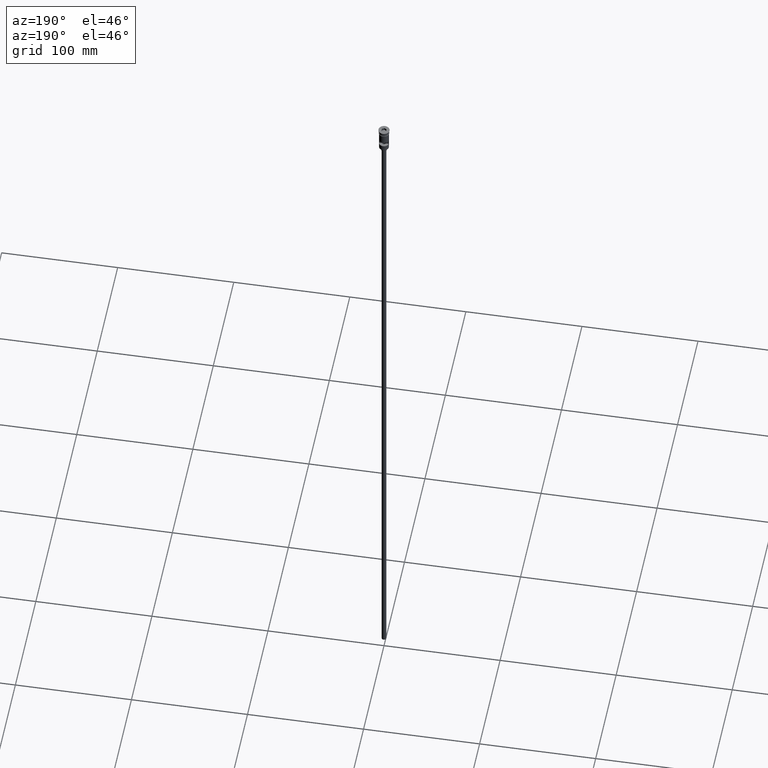
[diagram: clean part render]
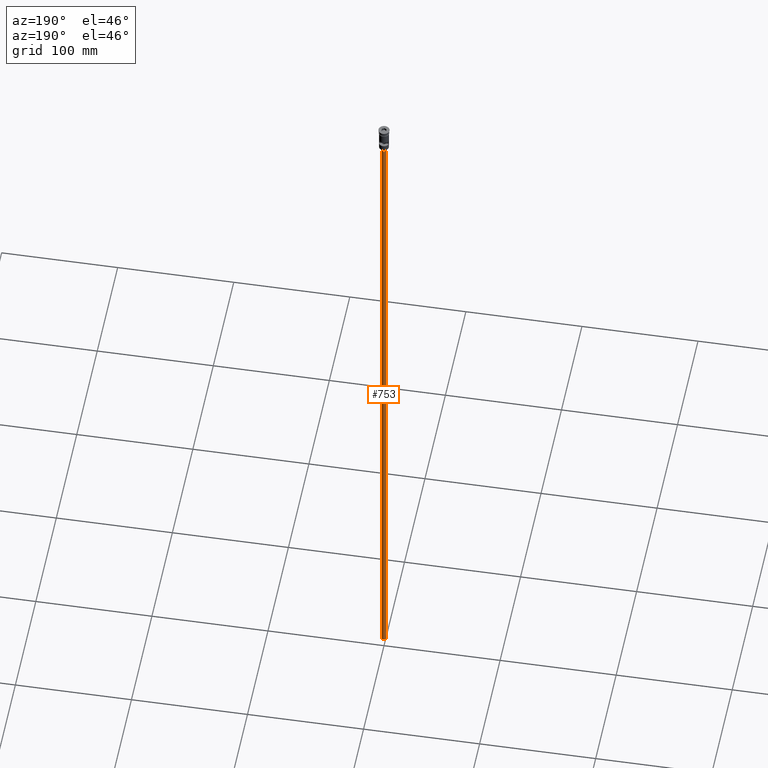
[diagram: same view with one face highlighted and labeled with its STEP entity id]
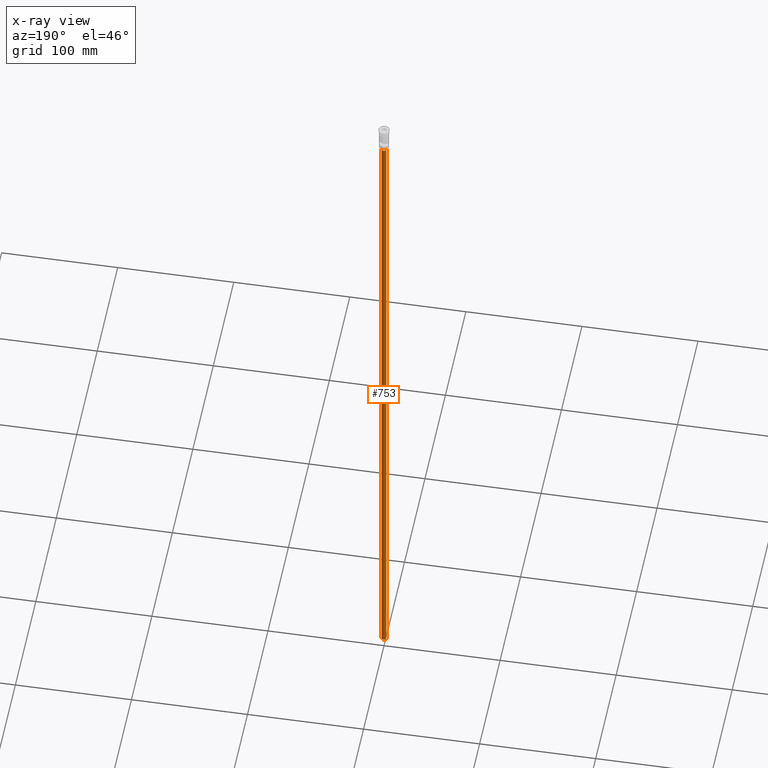
[diagram: x-ray of the same camera — body ghosted, the highlighted face saturated]
A machine part, auxiliary view. The second image highlights one B-rep face of the part: STEP entity #753.
The next image is the same camera in x-ray: the body ghosted, the highlighted face saturated — about 0% of this face is hidden behind the body in this view.
In plain terms, the highlighted cylindrical surface (edge-blend (fillet) strip) has radius 2 mm, axis along (-0, -0, 1).
Its self-contained STEP definition (entity closure, byte-faithful):
#39 = LINE ( 'NONE', #405, #1352 ) ;
#63 = VERTEX_POINT ( 'NONE', #629 ) ;
#127 = DIRECTION ( 'NONE',  ( -1.000000000000000000, 0.000000000000000000, 0.000000000000000000 ) ) ;
#133 = CARTESIAN_POINT ( 'NONE',  ( 2.000000000000000000, 0.000000000000000000, -620.4999999999998863 ) ) ;
#141 = ORIENTED_EDGE ( 'NONE', *, *, #991, .T. ) ;
#148 = AXIS2_PLACEMENT_3D ( 'NONE', #273, #993, #127 ) ;
#241 = AXIS2_PLACEMENT_3D ( 'NONE', #846, #704, #1575 ) ;
#273 = CARTESIAN_POINT ( 'NONE',  ( 0.000000000000000000, 0.000000000000000000, -23.49999999999999645 ) ) ;
#281 = DIRECTION ( 'NONE',  ( 0.000000000000000000, 0.000000000000000000, -1.000000000000000000 ) ) ;
#288 = CIRCLE ( 'NONE', #881, 2.000000000000000000 ) ;
#357 = CARTESIAN_POINT ( 'NONE',  ( -2.000000000000000000, 2.449293598294706414E-16, -23.49999999999999645 ) ) ;
#405 = CARTESIAN_POINT ( 'NONE',  ( -2.000000000000000000, 2.449293598294706414E-16, -620.4999999999998863 ) ) ;
#425 = CARTESIAN_POINT ( 'NONE',  ( 2.000000000000000000, 0.000000000000000000, -620.4999999999998863 ) ) ;
#457 = EDGE_CURVE ( 'NONE', #1218, #63, #1098, .T. ) ;
#488 = VERTEX_POINT ( 'NONE', #133 ) ;
#545 = EDGE_CURVE ( 'NONE', #488, #63, #790, .T. ) ;
#629 = CARTESIAN_POINT ( 'NONE',  ( 2.000000000000000000, 0.000000000000000000, -23.49999999999999645 ) ) ;
#666 = ORIENTED_EDGE ( 'NONE', *, *, #1002, .F. ) ;
#704 = DIRECTION ( 'NONE',  ( -0.000000000000000000, -0.000000000000000000, 1.000000000000000000 ) ) ;
#736 = ORIENTED_EDGE ( 'NONE', *, *, #457, .T. ) ;
#753 = ADVANCED_FACE ( 'NONE', ( #1434 ), #1331, .T. ) ;
#790 = LINE ( 'NONE', #425, #1092 ) ;
#846 = CARTESIAN_POINT ( 'NONE',  ( 0.000000000000000000, 0.000000000000000000, -620.4999999999998863 ) ) ;
#881 = AXIS2_PLACEMENT_3D ( 'NONE', #1533, #281, #885 ) ;
#885 = DIRECTION ( 'NONE',  ( -1.000000000000000000, 0.000000000000000000, 0.000000000000000000 ) ) ;
#991 = EDGE_CURVE ( 'NONE', #1541, #1218, #39, .T. ) ;
#993 = DIRECTION ( 'NONE',  ( 0.000000000000000000, 0.000000000000000000, -1.000000000000000000 ) ) ;
#1002 = EDGE_CURVE ( 'NONE', #1541, #488, #288, .T. ) ;
#1022 = DIRECTION ( 'NONE',  ( -0.000000000000000000, -0.000000000000000000, 1.000000000000000000 ) ) ;
#1037 = ORIENTED_EDGE ( 'NONE', *, *, #545, .F. ) ;
#1092 = VECTOR ( 'NONE', #1022, 1000.000000000000000 ) ;
#1098 = CIRCLE ( 'NONE', #148, 2.000000000000000000 ) ;
#1144 = DIRECTION ( 'NONE',  ( -0.000000000000000000, -0.000000000000000000, 1.000000000000000000 ) ) ;
#1218 = VERTEX_POINT ( 'NONE', #357 ) ;
#1331 = CYLINDRICAL_SURFACE ( 'NONE', #241, 2.000000000000000000 ) ;
#1352 = VECTOR ( 'NONE', #1144, 1000.000000000000000 ) ;
#1429 = EDGE_LOOP ( 'NONE', ( #666, #141, #736, #1037 ) ) ;
#1434 = FACE_OUTER_BOUND ( 'NONE', #1429, .T. ) ;
#1533 = CARTESIAN_POINT ( 'NONE',  ( 0.000000000000000000, 0.000000000000000000, -620.4999999999998863 ) ) ;
#1541 = VERTEX_POINT ( 'NONE', #1580 ) ;
#1575 = DIRECTION ( 'NONE',  ( 1.000000000000000000, 0.000000000000000000, 0.000000000000000000 ) ) ;
#1580 = CARTESIAN_POINT ( 'NONE',  ( -2.000000000000000000, 2.449293598294706414E-16, -620.4999999999998863 ) ) ;